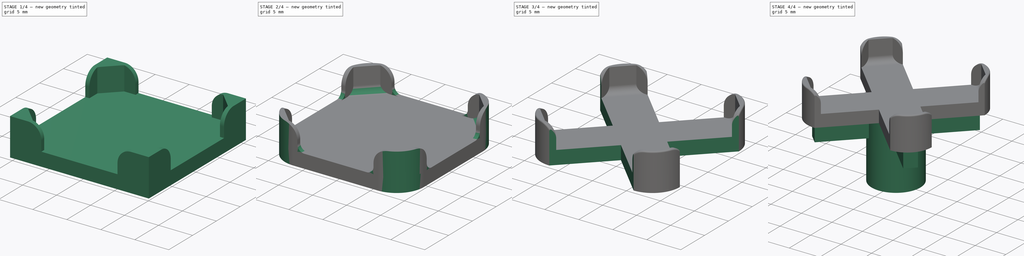
[diagram: build sequence overview — one tinted view per stage of 4, left to right]
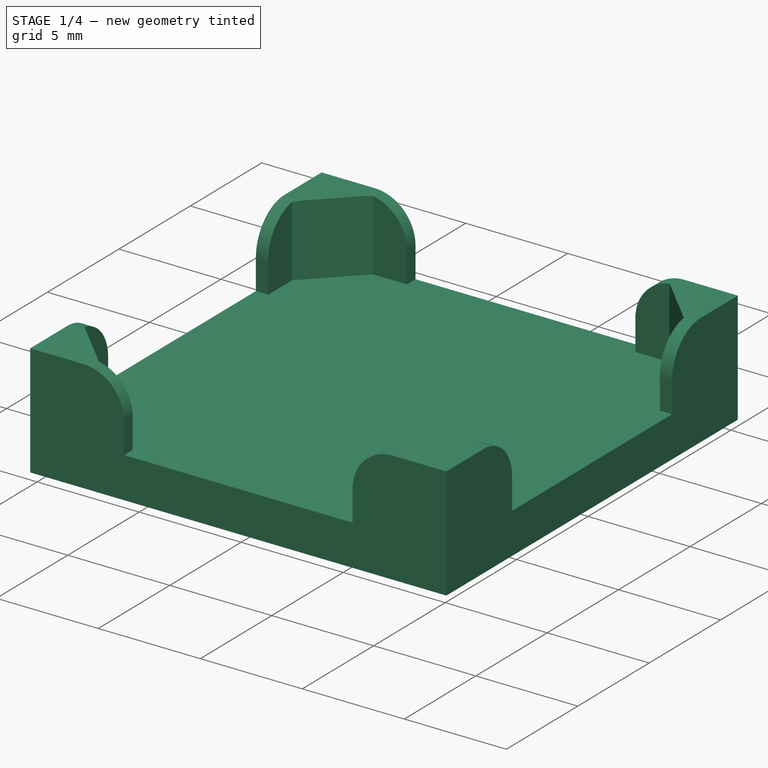
[diagram: stage 1 of 4 — iso view after this stage's code; geometry added in this stage tinted green]
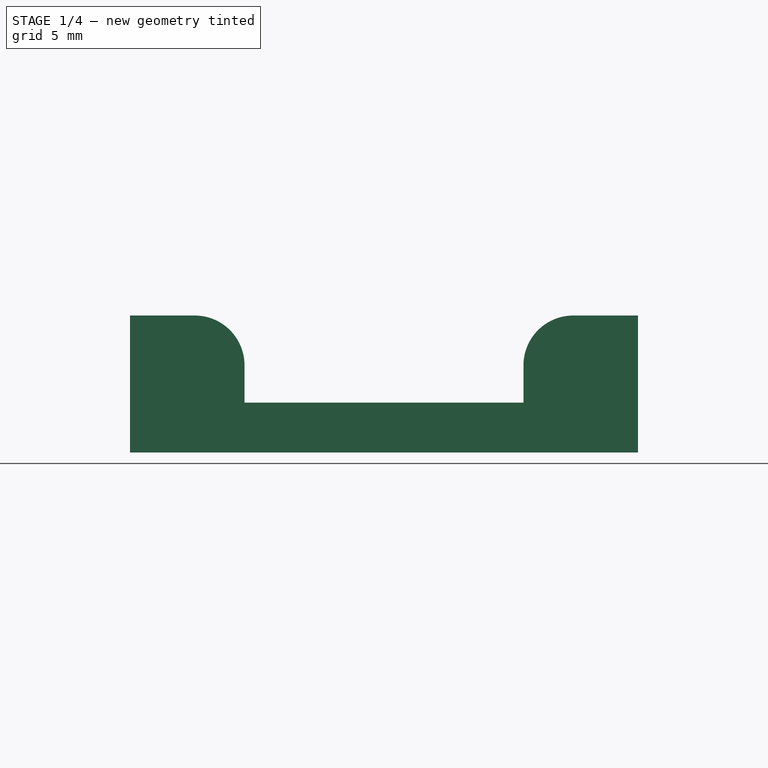
[diagram: stage 1 of 4 — front view after this stage's code; geometry added in this stage tinted green]
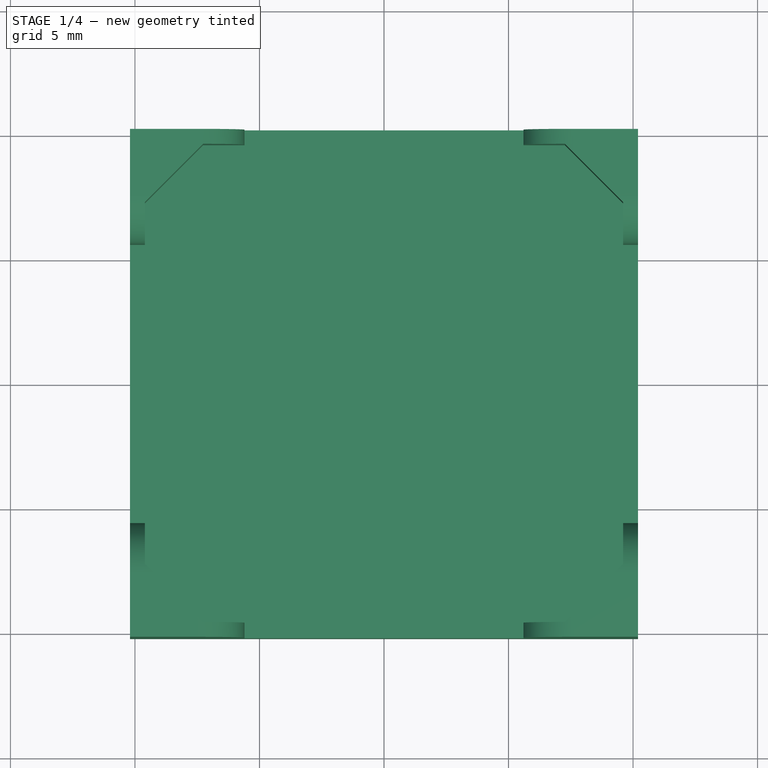
[diagram: stage 1 of 4 — top view after this stage's code; geometry added in this stage tinted green]
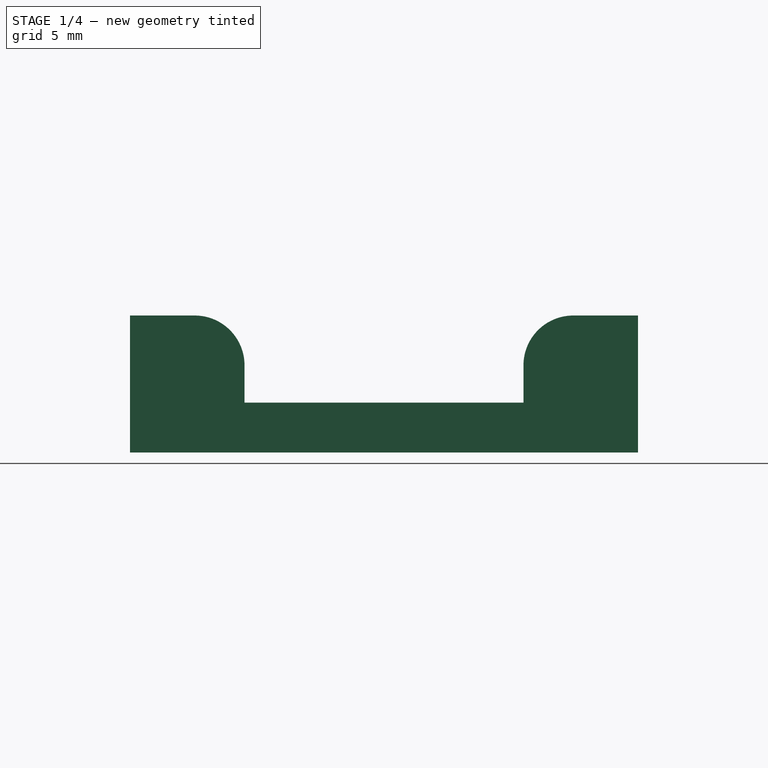
[diagram: stage 1 of 4 — right view after this stage's code; geometry added in this stage tinted green]
FCSTD DOCUMENT  (FreeCAD 0.15R4671 (Git))
Label: Rubiks Center Square Foot 2
License: All rights reserved
LicenseURL: http://en.wikipedia.org/wiki/All_rights_reserved
objects: Sketcher::SketchObject×6, PartDesign::Fillet×5, PartDesign::Pad×4, PartDesign::Pocket×2
note: 23 computed .brp shape members not serialized (recipe doc carries the construction recipe); baked Part::Feature solids carry a one-line shape summary decoded from their .brp

FEATURE [Sketcher::SketchObject] Sketch
  sketch-geometry (5):
    g0: LineSegment StartX=10.2 StartY=-10.2 StartZ=0 EndX=10.2 EndY=10.2 EndZ=0
    g1: LineSegment StartX=10.2 StartY=10.2 StartZ=0 EndX=-10.2 EndY=10.2 EndZ=0
    g2: LineSegment StartX=-10.2 StartY=10.2 StartZ=0 EndX=-10.2 EndY=-10.2 EndZ=0
    g3: LineSegment StartX=-10.2 StartY=-10.2 StartZ=0 EndX=10.2 EndY=-10.2 EndZ=0
    g4: Circle [constr] CenterX=0 CenterY=0 CenterZ=0 NormalX=0 NormalY=0 NormalZ=1 Radius=14.425
  constraints (15):
    c: Coincident(g0,g1)
    c: Coincident(g1,g2)
    c: Coincident(g2,g3)
    c: Coincident(g3,g0)
    c: Equal(g0,g1)
    c: Equal(g0,g2)
    c: Equal(g0,g3)
    c: PointOnObject(g0,g4)
    c: PointOnObject(g1,g4)
    c: PointOnObject(g2,g4)
    c: PointOnObject(g3,g4)
    c: Coincident(g1,g-1)
    c: Vertical(g0)
    c: Coincident(g4,g-1)
    c: Distance(g1) = 20.4
FEATURE [PartDesign::Pad] Pad
  Length = 2
  Length2 = 100
  Sketch = -> Sketch
  Type = 0
FEATURE [Sketcher::SketchObject] Sketch001
  ExternalGeometry = -> [Pad]
  Placement = pos=(0,0,2) rot=(0,0,1;0rad)
  Support = -> Pad [Face6]
  sketch-geometry (28):
    g0: LineSegment StartX=-10.2 StartY=10.2 StartZ=0 EndX=-5.6 EndY=10.2 EndZ=0
    g1: LineSegment StartX=-5.6 StartY=10.2 StartZ=0 EndX=-5.6 EndY=9.6 EndZ=0
    g2: LineSegment StartX=-5.6 StartY=9.6 StartZ=0 EndX=-7.26655 EndY=9.6 EndZ=0
    g3: LineSegment StartX=-7.26655 StartY=9.6 StartZ=0 EndX=-9.6 EndY=7.26655 EndZ=0
    g4: LineSegment StartX=-9.6 StartY=7.26655 StartZ=0 EndX=-9.6 EndY=5.6 EndZ=0
    g5: LineSegment StartX=-9.6 StartY=5.6 StartZ=0 EndX=-10.2 EndY=5.6 EndZ=0
    g6: LineSegment StartX=-10.2 StartY=5.6 StartZ=0 EndX=-10.2 EndY=10.2 EndZ=0
    g7: LineSegment StartX=5.6 StartY=10.2 StartZ=0 EndX=5.6 EndY=9.6 EndZ=0
    g8: LineSegment StartX=5.6 StartY=9.6 StartZ=0 EndX=7.26655 EndY=9.6 EndZ=0
    g9: LineSegment StartX=7.26655 StartY=9.6 StartZ=0 EndX=9.6 EndY=7.26655 EndZ=0
    g10: LineSegment StartX=9.6 StartY=7.26655 StartZ=0 EndX=9.6 EndY=5.6 EndZ=0
    g11: LineSegment StartX=9.6 StartY=5.6 StartZ=0 EndX=10.2 EndY=5.6 EndZ=0
    g12: LineSegment StartX=10.2 StartY=5.6 StartZ=0 EndX=10.2 EndY=10.2 EndZ=0
    g13: LineSegment StartX=10.2 StartY=10.2 StartZ=0 EndX=5.6 EndY=10.2 EndZ=0
    g14: LineSegment StartX=-10.2 StartY=-5.6 StartZ=0 EndX=-10.2 EndY=-10.2 EndZ=0
    g15: LineSegment StartX=-10.2 StartY=-10.2 StartZ=0 EndX=-5.6 EndY=-10.2 EndZ=0
    g16: LineSegment StartX=-5.6 StartY=-10.2 StartZ=0 EndX=-5.6 EndY=-9.6 EndZ=0
    g17: LineSegment StartX=-5.6 StartY=-9.6 StartZ=0 EndX=-7.26655 EndY=-9.6 EndZ=0
    g18: LineSegment StartX=-7.26655 StartY=-9.6 StartZ=0 EndX=-9.6 EndY=-7.26655 EndZ=0
    g19: LineSegment StartX=-9.6 StartY=-7.26655 StartZ=0 EndX=-9.6 EndY=-5.6 EndZ=0
    g20: LineSegment StartX=-9.6 StartY=-5.6 StartZ=0 EndX=-10.2 EndY=-5.6 EndZ=0
    g21: LineSegment StartX=5.6 StartY=-9.6 StartZ=0 EndX=5.6 EndY=-10.2 EndZ=0
    g22: LineSegment StartX=5.6 StartY=-10.2 StartZ=0 EndX=10.2 EndY=-10.2 EndZ=0
    g23: LineSegment StartX=10.2 StartY=-10.2 StartZ=0 EndX=10.2 EndY=-5.6 EndZ=0
    g24: LineSegment StartX=10.2 StartY=-5.6 StartZ=0 EndX=9.6 EndY=-5.6 EndZ=0
    g25: LineSegment StartX=9.6 StartY=-5.6 StartZ=0 EndX=9.6 EndY=-7.26655 EndZ=0
    g26: LineSegment StartX=9.6 StartY=-7.26655 StartZ=0 EndX=7.26655 EndY=-9.6 EndZ=0
    g27: LineSegment StartX=7.26655 StartY=-9.6 StartZ=0 EndX=5.6 EndY=-9.6 EndZ=0
  constraints (83):
    c: Horizontal(g0)
    c: Coincident(g0,g1)
    c: Vertical(g1)
    c: Coincident(g1,g2)
    c: Horizontal(g2)
    c: Coincident(g2,g3)
    c: Coincident(g3,g4)
    c: Vertical(g4)
    c: Coincident(g4,g5)
    c: Coincident(g5,g6)
    c: Coincident(g6,g0)
    c: Vertical(g6)
    c: Horizontal(g5)
    c: Coincident(g7,g8)
    c: Horizontal(g8)
    c: Coincident(g8,g9)
    c: Coincident(g9,g10)
    c: Vertical(g10)
    c: Coincident(g10,g11)
    c: Coincident(g11,g12)
    c: Vertical(g12)
    c: Coincident(g12,g13)
    c: Coincident(g13,g7)
    c: Horizontal(g13)
    c: Vertical(g14)
    c: Coincident(g14,g15)
    c: Horizontal(g15)
    c: Coincident(g15,g16)
    c: Coincident(g16,g17)
    c: Horizontal(g17)
    c: Coincident(g17,g18)
    c: Coincident(g18,g19)
    c: Vertical(g19)
    c: Coincident(g19,g20)
    c: Coincident(g20,g14)
    c: Horizontal(g20)
    c: Coincident(g21,g22)
    c: Horizontal(g22)
    c: Coincident(g22,g23)
    c: Vertical(g23)
    c: Coincident(g23,g24)
    c: Horizontal(g24)
    c: Coincident(g24,g25)
    c: Vertical(g25)
    c: Coincident(g25,g26)
    c: Coincident(g26,g27)
    c: Coincident(g27,g21)
    c: Horizontal(g27)
    c: Horizontal(g11)
    c: Vertical(g16)
    c: Vertical(g21)
    c: Vertical(g7)
    c: Equal(g3,g9)
    c: Equal(g9,g26)
    c: Equal(g26,g18)
    c: Equal(g4,g2)
    c: Equal(g2,g8)
    c: Equal(g8,g10)
    c: Equal(g10,g25)
    c: Equal(g25,g27)
    c: Equal(g27,g17)
    c: Equal(g17,g19)
    c: Equal(g15,g14)
    c: Equal(g14,g6)
    c: Equal(g6,g0)
    c: Equal(g0,g13)
    c: Equal(g13,g12)
    c: Equal(g12,g23)
    c: Equal(g23,g22)
    c: Symmetric(g14,g22,g-2)
    c: Symmetric(g0,g12,g-2)
    c: Symmetric(g0,g14,g-1)
    c: Equal(g20,g5)
    c: Equal(g5,g1)
    c: Equal(g1,g7)
    c: Equal(g7,g11)
    c: Equal(g11,g24)
    c: Equal(g24,g21)
    c: Equal(g21,g16)
    c: Distance(g3) = 3.3
    c: Coincident(g0,g-5)
    c: DistanceX(g4,g10) = 19.2
    c: DistanceX(g1,g4) = -4
FEATURE [PartDesign::Pad] Pad001
  Length = 3.5
  Length2 = 100
  Sketch = -> Sketch001
  Type = 0
FEATURE [PartDesign::Fillet] Fillet
  Base = -> Pad001 [Edge76,Edge84,Edge75,Edge68,Edge62,Edge61,Edge93,Edge86]
  Radius = 2
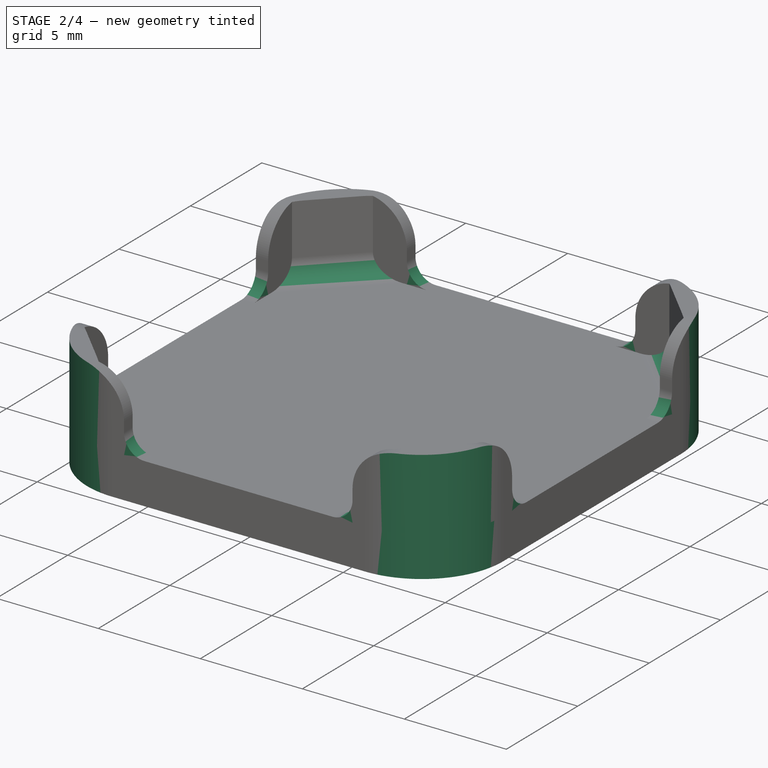
[diagram: stage 2 of 4 — iso view after this stage's code; geometry added in this stage tinted green]
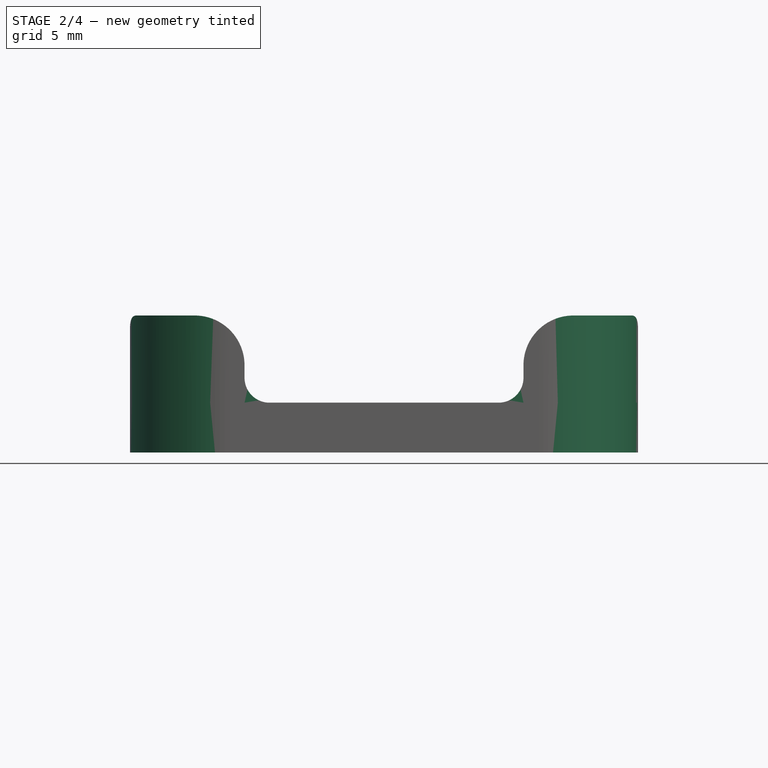
[diagram: stage 2 of 4 — front view after this stage's code; geometry added in this stage tinted green]
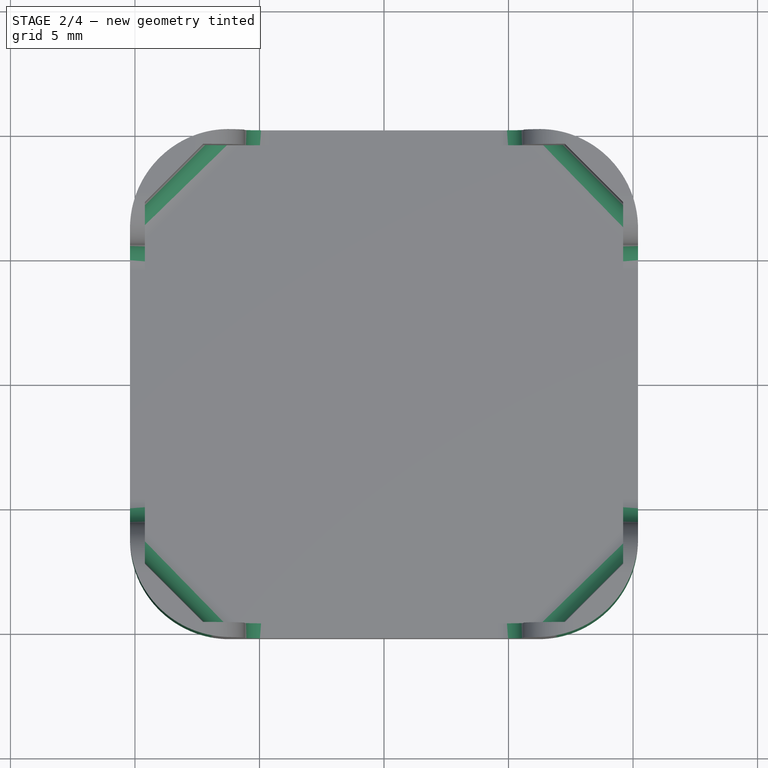
[diagram: stage 2 of 4 — top view after this stage's code; geometry added in this stage tinted green]
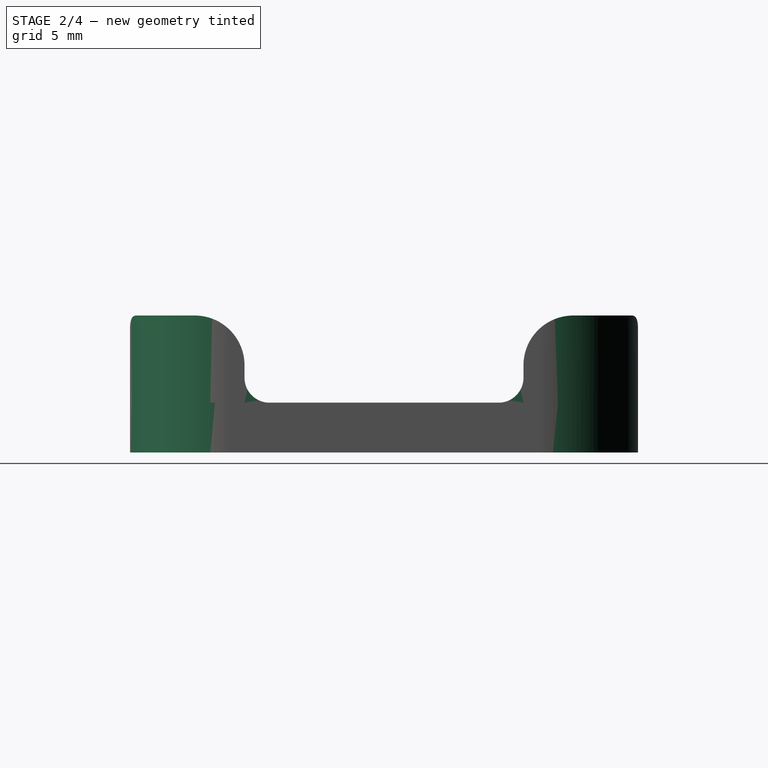
[diagram: stage 2 of 4 — right view after this stage's code; geometry added in this stage tinted green]
FEATURE [PartDesign::Fillet] Fillet001
  Base = -> Fillet [Edge67,Edge110,Edge62,Edge3,Edge18,Edge20,Edge57,Edge32]
  Radius = 4
FEATURE [PartDesign::Fillet] Fillet002
  Base = -> Fillet001 [Edge45,Edge39,Edge35,Edge53,Edge14,Edge41,Edge47,Edge51]
  Radius = 1
FEATURE [PartDesign::Fillet] Fillet003
  Base = -> Fillet002 [Edge32,Edge48,Edge33,Edge49]
  Radius = 1
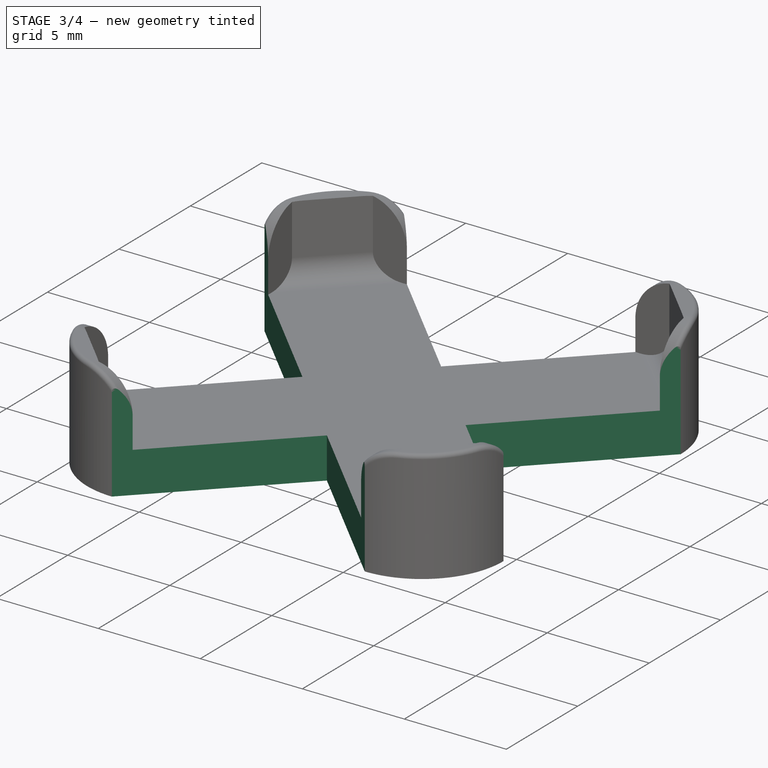
[diagram: stage 3 of 4 — iso view after this stage's code; geometry added in this stage tinted green]
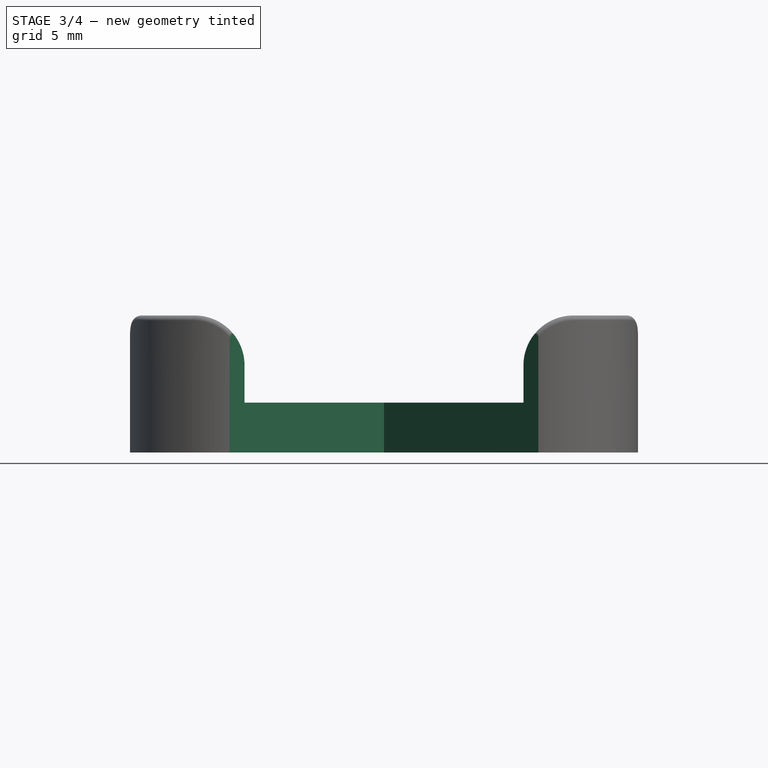
[diagram: stage 3 of 4 — front view after this stage's code; geometry added in this stage tinted green]
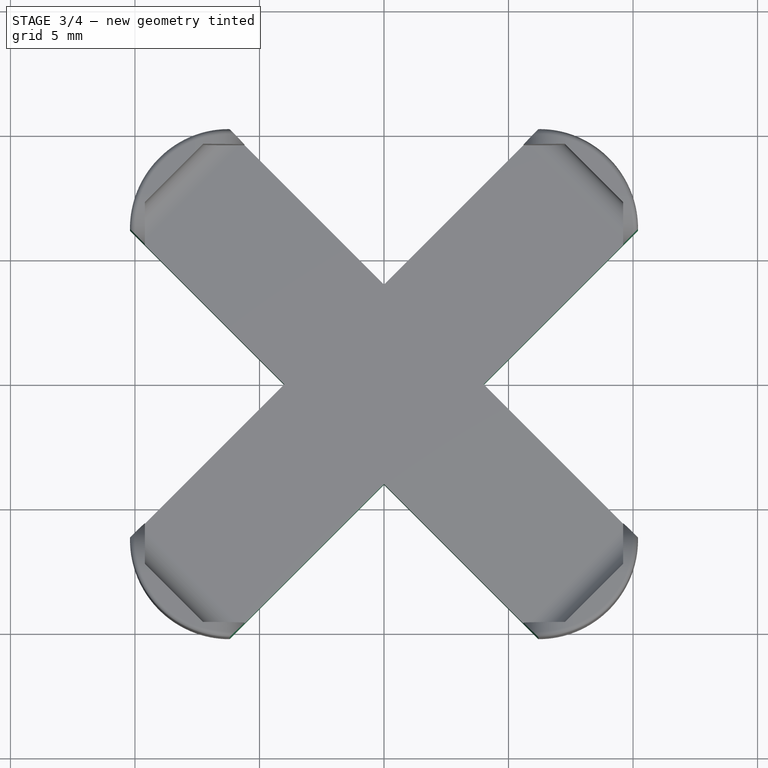
[diagram: stage 3 of 4 — top view after this stage's code; geometry added in this stage tinted green]
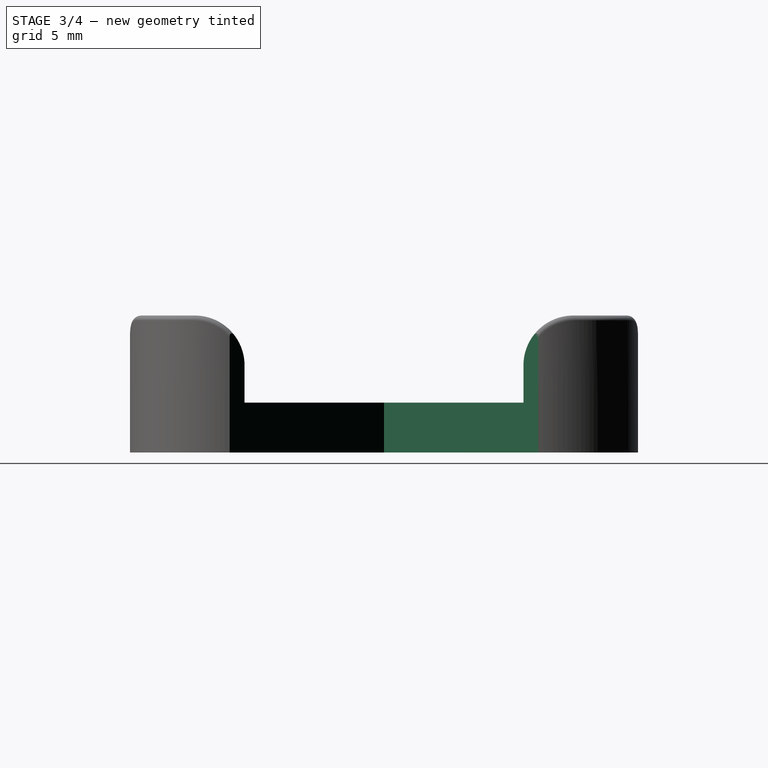
[diagram: stage 3 of 4 — right view after this stage's code; geometry added in this stage tinted green]
FEATURE [PartDesign::Fillet] Fillet004
  Base = -> Fillet003 [Edge85,Edge25,Edge147,Edge148,Edge160,Edge191,Edge168,Edge167,Edge171,Edge113,Edge41]
  Radius = 0.2
FEATURE [Sketcher::SketchObject] Sketch002
  ExternalGeometry = -> [Fillet004]
  Placement = pos=(0,0,0) rot=(1,0,0;3.14159rad)
  Support = -> Fillet004 [Face46]
  sketch-geometry (12):
    g0: LineSegment StartX=-6.2 StartY=10.2 StartZ=0 EndX=0 EndY=4 EndZ=0
    g1: LineSegment StartX=0 StartY=4 StartZ=0 EndX=6.2 EndY=10.2 EndZ=0
    g2: LineSegment StartX=6.2 StartY=10.2 StartZ=0 EndX=-6.2 EndY=10.2 EndZ=0
    g3: LineSegment StartX=-10.2 StartY=6.2 StartZ=0 EndX=-4 EndY=0 EndZ=0
    g4: LineSegment StartX=-4 StartY=0 StartZ=0 EndX=-10.2 EndY=-6.2 EndZ=0
    g5: LineSegment StartX=-10.2 StartY=-6.2 StartZ=0 EndX=-10.2 EndY=6.2 EndZ=0
    g6: LineSegment StartX=-6.2 StartY=-10.2 StartZ=0 EndX=0 EndY=-4 EndZ=0
    g7: LineSegment StartX=0 StartY=-4 StartZ=0 EndX=6.2 EndY=-10.2 EndZ=0
    g8: LineSegment StartX=6.2 StartY=-10.2 StartZ=0 EndX=-6.2 EndY=-10.2 EndZ=0
    g9: LineSegment StartX=10.2 StartY=6.2 StartZ=0 EndX=4 EndY=0 EndZ=0
    g10: LineSegment StartX=4 StartY=0 StartZ=0 EndX=10.2 EndY=-6.2 EndZ=0
    g11: LineSegment StartX=10.2 StartY=-6.2 StartZ=0 EndX=10.2 EndY=6.2 EndZ=0
  constraints (28):
    c: Coincident(g-3,g0)
    c: PointOnObject(g0,g-2)
    c: Coincident(g0,g1)
    c: Coincident(g1,g-3)
    c: Coincident(g1,g2)
    c: Coincident(g2,g0)
    c: Coincident(g-4,g3)
    c: PointOnObject(g3,g-1)
    c: Coincident(g3,g4)
    c: Coincident(g4,g-4)
    c: Coincident(g4,g5)
    c: Coincident(g5,g3)
    c: Coincident(g-5,g6)
    c: PointOnObject(g6,g-2)
    c: Coincident(g6,g7)
    c: Coincident(g7,g-5)
    c: Coincident(g7,g8)
    c: Coincident(g8,g6)
    c: Coincident(g-6,g9)
    c: PointOnObject(g9,g-1)
    c: Coincident(g9,g10)
    c: Coincident(g10,g-6)
    c: Coincident(g10,g11)
    c: Coincident(g11,g9)
    c: Symmetric(g9,g3,g-2)
    c: Symmetric(g0,g6,g-1)
    c: DistanceY(g-1,g6) = -4
    c: DistanceX(g-1,g3) = -4
FEATURE [PartDesign::Pocket] Pocket
  Length = 5
  Sketch = -> Sketch002
  Type = 1
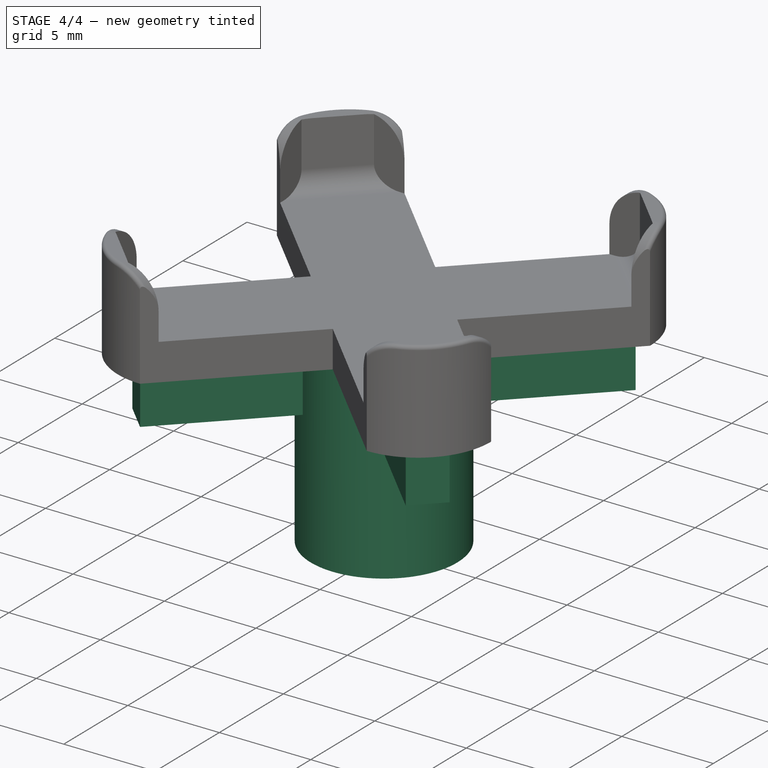
[diagram: stage 4 of 4 — iso view after this stage's code; geometry added in this stage tinted green]
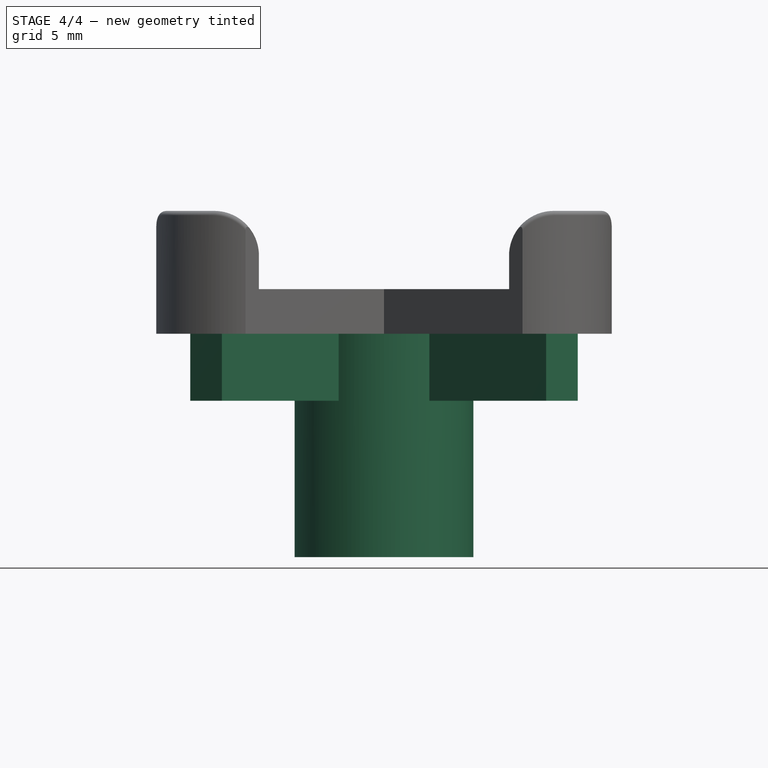
[diagram: stage 4 of 4 — front view after this stage's code; geometry added in this stage tinted green]
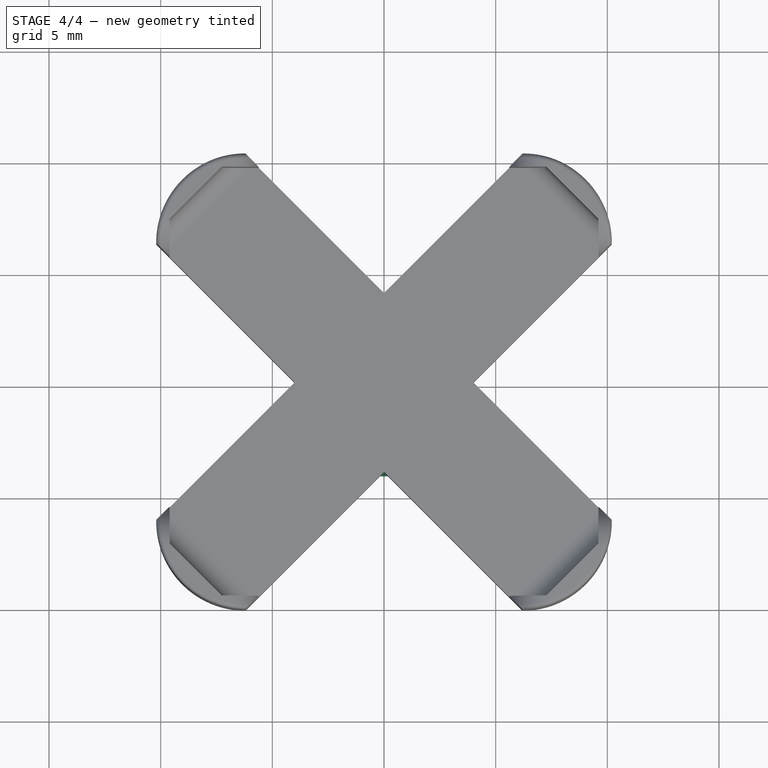
[diagram: stage 4 of 4 — top view after this stage's code; geometry added in this stage tinted green]
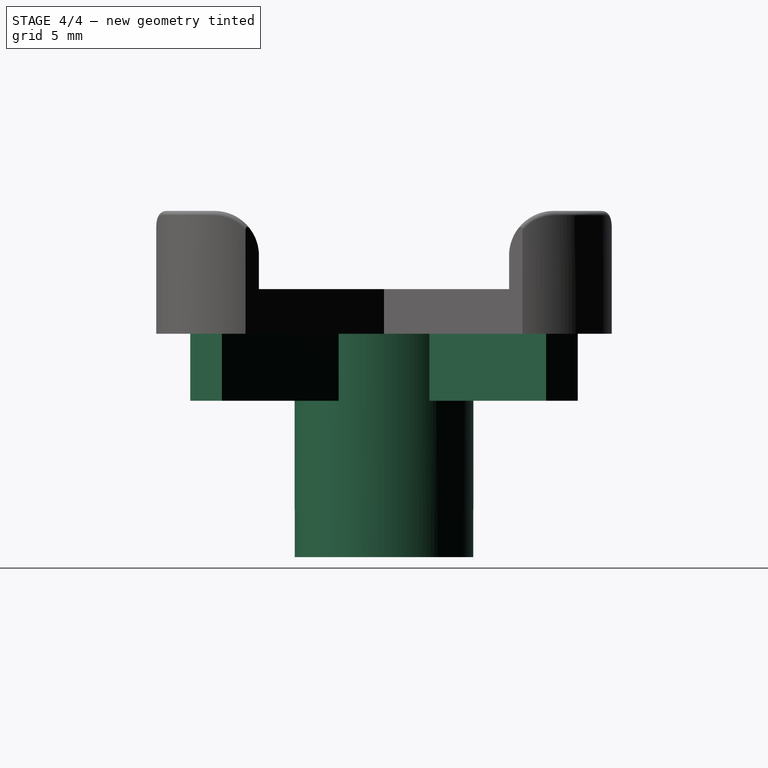
[diagram: stage 4 of 4 — right view after this stage's code; geometry added in this stage tinted green]
FEATURE [Sketcher::SketchObject] Sketch003
  Placement = pos=(0,0,0) rot=(1,0,0;3.14159rad)
  Support = -> Pocket [Face13]
  sketch-geometry (17):
    g0: LineSegment StartX=-8.6738 StartY=-7.25959 StartZ=0 EndX=-7.25959 EndY=-8.6738 EndZ=0
    g1: LineSegment StartX=-7.25959 StartY=-8.6738 StartZ=0 EndX=0 EndY=-1.41421 EndZ=0
    g2: LineSegment StartX=0 StartY=-1.41421 StartZ=0 EndX=7.25959 EndY=-8.6738 EndZ=0
    g3: LineSegment StartX=7.25959 StartY=-8.6738 StartZ=0 EndX=8.6738 EndY=-7.25959 EndZ=0
    g4: LineSegment StartX=8.6738 StartY=-7.25959 StartZ=0 EndX=1.41421 EndY=0 EndZ=0
    g5: LineSegment StartX=1.41421 StartY=0 StartZ=0 EndX=8.6738 EndY=7.25959 EndZ=0
    g6: LineSegment StartX=8.6738 StartY=7.25959 StartZ=0 EndX=7.25959 EndY=8.6738 EndZ=0
    g7: LineSegment StartX=7.25959 StartY=8.6738 StartZ=0 EndX=0 EndY=1.41421 EndZ=0
    g8: LineSegment StartX=0 StartY=1.41421 StartZ=0 EndX=-7.25959 EndY=8.6738 EndZ=0
    g9: LineSegment StartX=-7.25959 StartY=8.6738 StartZ=0 EndX=-8.6738 EndY=7.25959 EndZ=0
    g10: LineSegment StartX=-8.6738 StartY=7.25959 StartZ=0 EndX=-1.41421 EndY=0 EndZ=0
    g11: LineSegment StartX=-1.41421 StartY=0 StartZ=0 EndX=-8.6738 EndY=-7.25959 EndZ=0
    g12: Circle [constr] CenterX=0 CenterY=0 CenterZ=0 NormalX=0 NormalY=0 NormalZ=1 Radius=11.3109
    g13: LineSegment [constr] StartX=-7.25959 StartY=-8.6738 StartZ=0 EndX=7.25959 EndY=-8.6738 EndZ=0
    g14: LineSegment [constr] StartX=8.6738 StartY=-7.25959 StartZ=0 EndX=8.6738 EndY=7.25959 EndZ=0
    g15: LineSegment [constr] StartX=7.25959 StartY=8.6738 StartZ=0 EndX=-7.25959 EndY=8.6738 EndZ=0
    g16: LineSegment [constr] StartX=-8.6738 StartY=7.25959 StartZ=0 EndX=-8.6738 EndY=-7.25959 EndZ=0
  constraints (46):
    c: Coincident(g0,g1)
    c: Coincident(g1,g2)
    c: Coincident(g2,g3)
    c: Coincident(g3,g4)
    c: Coincident(g4,g5)
    c: Coincident(g5,g6)
    c: Coincident(g6,g7)
    c: Coincident(g7,g8)
    c: Coincident(g8,g9)
    c: Coincident(g9,g10)
    c: PointOnObject(g10,g-1)
    c: Coincident(g10,g11)
    c: Coincident(g11,g0)
    c: Distance(g9) = 2
    c: Coincident(g12,g-1)
    c: PointOnObject(g9,g12)
    c: PointOnObject(g8,g12)
    c: PointOnObject(g0,g12)
    c: PointOnObject(g0,g12)
    c: PointOnObject(g6,g12)
    c: PointOnObject(g5,g12)
    c: PointOnObject(g3,g12)
    c: PointOnObject(g2,g12)
    c: Coincident(g13,g0)
    c: Coincident(g13,g2)
    c: Horizontal(g13)
    c: Coincident(g14,g3)
    c: Coincident(g14,g5)
    c: Vertical(g14)
    c: Coincident(g15,g6)
    c: Coincident(g15,g8)
    c: Horizontal(g15)
    c: Coincident(g16,g9)
    c: Coincident(g16,g0)
    c: Vertical(g16)
    c: Equal(g16,g15)
    c: Equal(g15,g14)
    c: Equal(g14,g13)
    c: Equal(g3,g12)
    c: PointOnObject(g4,g-1)
    c: PointOnObject(g7,g-2)
    c: PointOnObject(g1,g-2)
    c: Perpendicular(g10,g11)
    c: Perpendicular(g7,g8)
    c: Perpendicular(g4,g5)
    c: Perpendicular(g1,g2)
FEATURE [PartDesign::Pad] Pad002
  Length = 3
  Length2 = 100
  Sketch = -> Sketch003
  Type = 0
FEATURE [Sketcher::SketchObject] Sketch004
  Placement = pos=(0,0,0) rot=(1,0,0;3.14159rad)
  Support = -> Pad002 [Face13]
  sketch-geometry (1):
    g0: Circle CenterX=0 CenterY=0 CenterZ=0 NormalX=0 NormalY=0 NormalZ=1 Radius=4
  constraints (2):
    c: Coincident(g0,g-1)
    c: Radius(g0) = 4
FEATURE [PartDesign::Pad] Pad003
  Length = 10
  Length2 = 100
  Sketch = -> Sketch004
  Type = 0
FEATURE [Sketcher::SketchObject] Sketch005
  Placement = pos=(0,0,-10) rot=(1,0,0;3.14159rad)
  Support = -> Pad003 [Face78]
  sketch-geometry (12):
    g0: LineSegment StartX=0.95 StartY=2.5 StartZ=0 EndX=-0.95 EndY=2.5 EndZ=0
    g1: LineSegment StartX=-0.95 StartY=2.5 StartZ=0 EndX=-0.95 EndY=0.95 EndZ=0
    g2: LineSegment StartX=-0.95 StartY=0.95 StartZ=0 EndX=-2.5 EndY=0.95 EndZ=0
    g3: LineSegment StartX=-2.5 StartY=0.95 StartZ=0 EndX=-2.5 EndY=-0.95 EndZ=0
    g4: LineSegment StartX=-2.5 StartY=-0.95 StartZ=0 EndX=-0.95 EndY=-0.95 EndZ=0
    g5: LineSegment StartX=-0.95 StartY=-0.95 StartZ=0 EndX=-0.95 EndY=-2.5 EndZ=0
    g6: LineSegment StartX=-0.95 StartY=-2.5 StartZ=0 EndX=0.95 EndY=-2.5 EndZ=0
    g7: LineSegment StartX=0.95 StartY=-2.5 StartZ=0 EndX=0.95 EndY=-0.95 EndZ=0
    g8: LineSegment StartX=0.95 StartY=-0.95 StartZ=0 EndX=2.5 EndY=-0.95 EndZ=0
    g9: LineSegment StartX=2.5 StartY=-0.95 StartZ=0 EndX=2.5 EndY=0.95 EndZ=0
    g10: LineSegment StartX=2.5 StartY=0.95 StartZ=0 EndX=0.95 EndY=0.95 EndZ=0
    g11: LineSegment StartX=0.95 StartY=0.95 StartZ=0 EndX=0.95 EndY=2.5 EndZ=0
  constraints (38):
    c: Coincident(g0,g1)
    c: Vertical(g1)
    c: Coincident(g1,g2)
    c: Horizontal(g2)
    c: Coincident(g2,g3)
    c: Coincident(g3,g4)
    c: Horizontal(g4)
    c: Coincident(g4,g5)
    c: Vertical(g5)
    c: Coincident(g5,g6)
    c: Horizontal(g6)
    c: Coincident(g6,g7)
    c: Vertical(g7)
    c: Coincident(g7,g8)
    c: Horizontal(g8)
    c: Coincident(g8,g9)
    c: Coincident(g9,g10)
    c: Horizontal(g10)
    c: Coincident(g10,g11)
    c: Coincident(g11,g0)
    c: Vertical(g11)
    c: Vertical(g3)
    c: Vertical(g9)
    c: Horizontal(g0)
    c: Equal(g2,g4)
    c: Equal(g4,g5)
    c: Equal(g5,g7)
    c: Equal(g7,g8)
    c: Equal(g8,g10)
    c: Equal(g10,g11)
    c: Equal(g11,g1)
    c: Equal(g3,g0)
    c: Equal(g0,g9)
    c: Equal(g9,g6)
    c: Symmetric(g1,g4,g-1)
    c: Symmetric(g1,g10,g-2)
    c: DistanceY(g0,g6) = -5
    c: DistanceY(g2,g3) = -1.9
FEATURE [PartDesign::Pocket] Pocket001
  Length = 8
  Sketch = -> Sketch005
  Type = 0
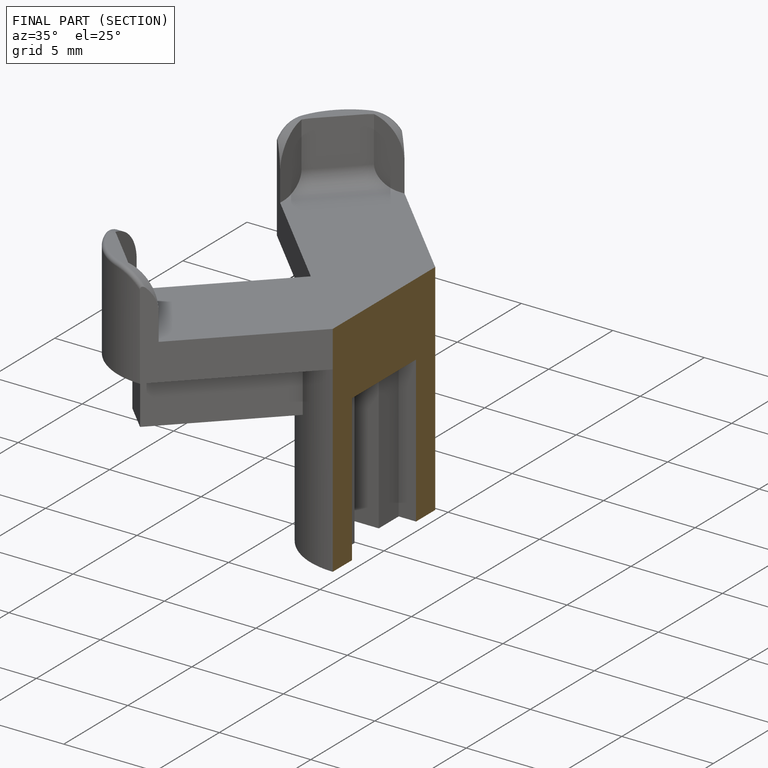
[diagram: finished part — half-section view (interior)]
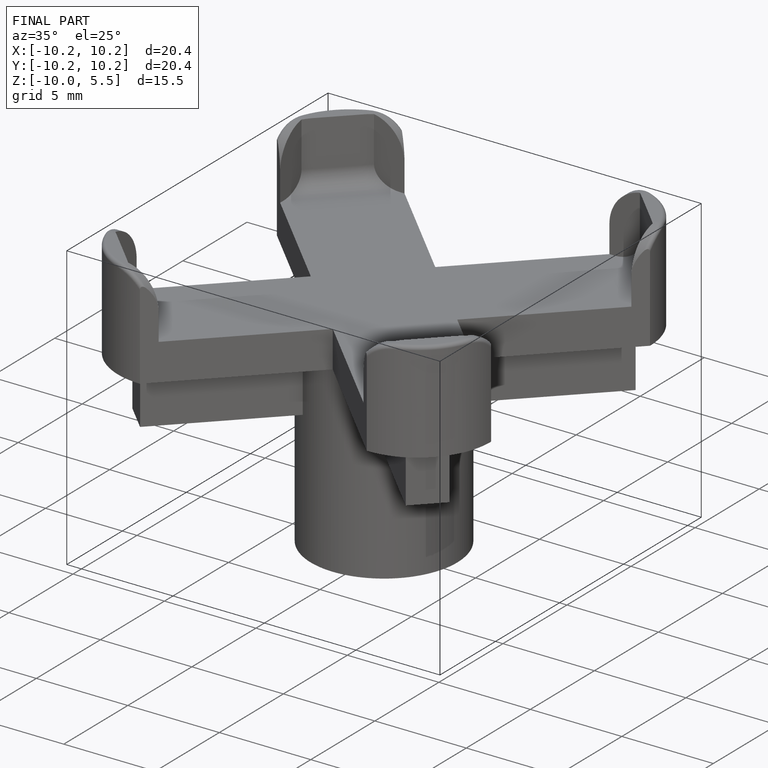
[diagram: finished part — iso view with bounding-box wireframe]
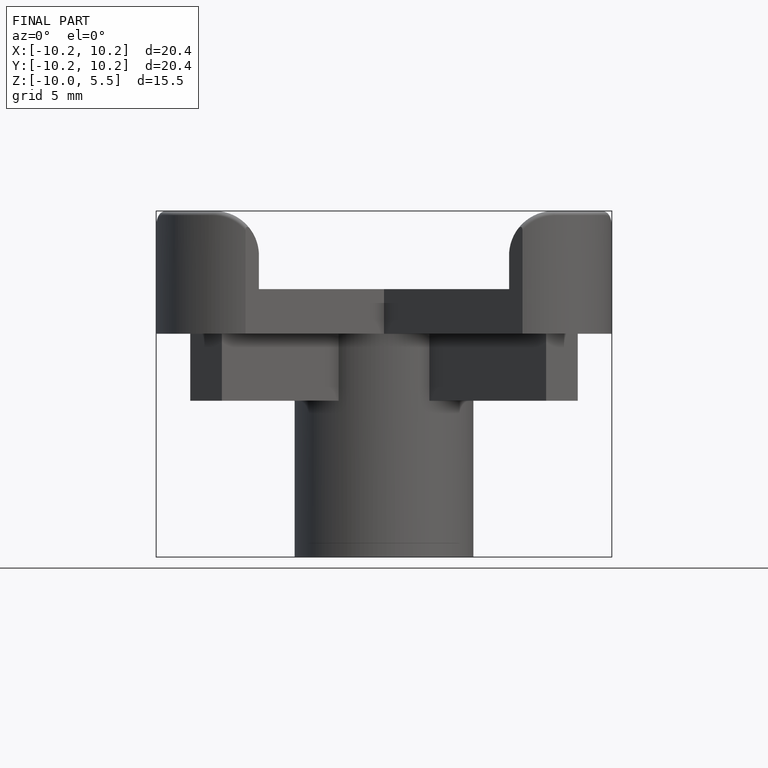
[diagram: finished part — front view with bounding-box wireframe]
